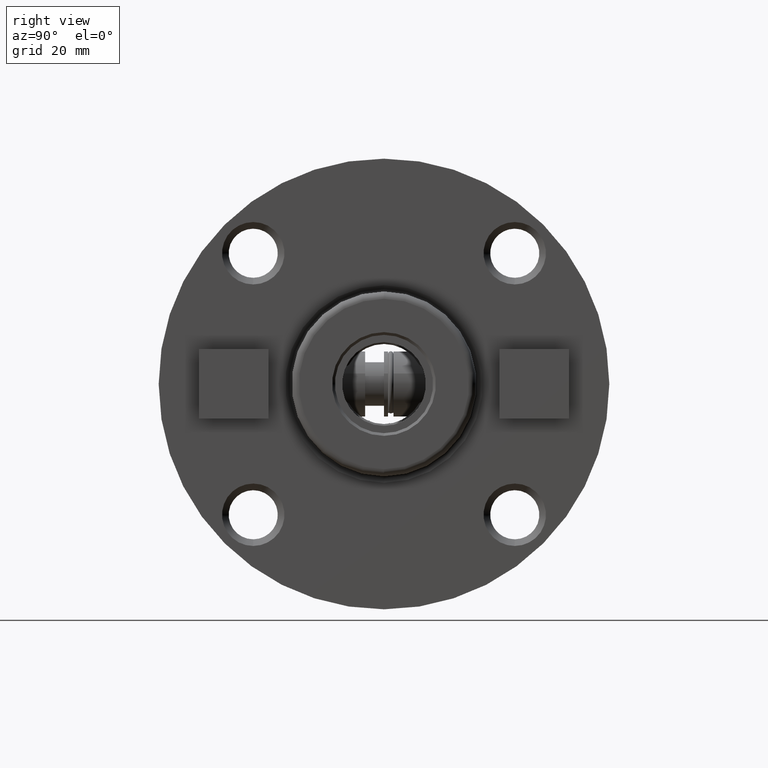
[diagram: clean part render]
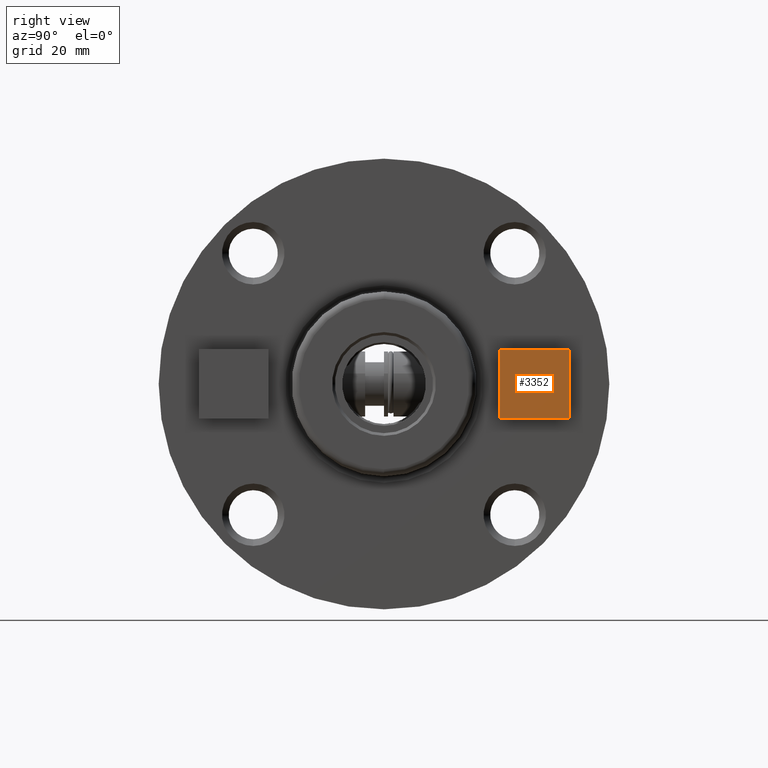
[diagram: same view with one face highlighted and labeled with its STEP entity id]
A machine part, right view. The second image highlights one B-rep face of the part: STEP entity #3352.
In plain terms, the highlighted planar face has unit normal (1, 0, 0).
Its self-contained STEP definition (entity closure, byte-faithful):
#159 = AXIS2_PLACEMENT_3D ( 'NONE', #2183, #2292, #2293 ) ;
#427 = ORIENTED_EDGE ( 'NONE', *, *, #5033, .T. ) ;
#429 = ORIENTED_EDGE ( 'NONE', *, *, #5017, .T. ) ;
#451 = ORIENTED_EDGE ( 'NONE', *, *, #5034, .T. ) ;
#2183 = CARTESIAN_POINT ( 'NONE',  ( 11.11249999999999700, -9.524999999999998600, 9.525000000000000400 ) ) ;
#2209 = PLANE ( 'NONE',  #159 ) ;
#2292 = DIRECTION ( 'NONE',  ( 1.000000000000000000, 0.0000000000000000000, 0.0000000000000000000 ) ) ;
#2293 = DIRECTION ( 'NONE',  ( 0.0000000000000000000, 0.0000000000000000000, -1.000000000000000000 ) ) ;
#2806 = ORIENTED_EDGE ( 'NONE', *, *, #5029, .T. ) ;
#3352 = ADVANCED_FACE ( 'NONE', ( #3978 ), #2209, .T. ) ;
#3720 = EDGE_LOOP ( 'NONE', ( #451, #2806, #427, #429 ) ) ;
#3978 = FACE_OUTER_BOUND ( 'NONE', #3720, .T. ) ;
#4173 = VECTOR ( 'NONE', #4719, 1000.000000000000000 ) ;
#4182 = LINE ( 'NONE', #4996, #4173 ) ;
#4199 = LINE ( 'NONE', #4692, #4200 ) ;
#4200 = VECTOR ( 'NONE', #4693, 1000.000000000000000 ) ;
#4203 = VECTOR ( 'NONE', #4722, 1000.000000000000000 ) ;
#4205 = LINE ( 'NONE', #4685, #4203 ) ;
#4207 = LINE ( 'NONE', #4738, #4208 ) ;
#4208 = VECTOR ( 'NONE', #4830, 1000.000000000000000 ) ;
#4352 = VERTEX_POINT ( 'NONE', #4981 ) ;
#4353 = VERTEX_POINT ( 'NONE', #4980 ) ;
#4354 = VERTEX_POINT ( 'NONE', #4973 ) ;
#4355 = VERTEX_POINT ( 'NONE', #4975 ) ;
#4685 = CARTESIAN_POINT ( 'NONE',  ( 11.11249999999999700, 9.524999999999998600, -9.524999999999998600 ) ) ;
#4692 = CARTESIAN_POINT ( 'NONE',  ( 11.11249999999999700, -9.524999999999998600, 9.525000000000000400 ) ) ;
#4693 = DIRECTION ( 'NONE',  ( 0.0000000000000000000, 0.0000000000000000000, -1.000000000000000000 ) ) ;
#4719 = DIRECTION ( 'NONE',  ( -0.0000000000000000000, -0.0000000000000000000, 1.000000000000000000 ) ) ;
#4722 = DIRECTION ( 'NONE',  ( -0.0000000000000000000, 1.000000000000000000, 9.106159978880878600E-017 ) ) ;
#4738 = CARTESIAN_POINT ( 'NONE',  ( 11.11249999999999700, 9.524999999999998600, 9.525000000000002100 ) ) ;
#4830 = DIRECTION ( 'NONE',  ( 0.0000000000000000000, -1.000000000000000000, -9.106159978880878600E-017 ) ) ;
#4973 = CARTESIAN_POINT ( 'NONE',  ( 11.11249999999999700, -9.524999999999998600, -9.525000000000000400 ) ) ;
#4975 = CARTESIAN_POINT ( 'NONE',  ( 11.11249999999999700, 9.524999999999998600, -9.524999999999998600 ) ) ;
#4980 = CARTESIAN_POINT ( 'NONE',  ( 11.11249999999999700, 9.524999999999998600, 9.525000000000002100 ) ) ;
#4981 = CARTESIAN_POINT ( 'NONE',  ( 11.11249999999999700, -9.524999999999998600, 9.525000000000000400 ) ) ;
#4996 = CARTESIAN_POINT ( 'NONE',  ( 11.11249999999999700, 9.524999999999998600, 9.525000000000002100 ) ) ;
#5017 = EDGE_CURVE ( 'NONE', #4355, #4353, #4182, .T. ) ;
#5029 = EDGE_CURVE ( 'NONE', #4352, #4354, #4199, .T. ) ;
#5033 = EDGE_CURVE ( 'NONE', #4354, #4355, #4205, .T. ) ;
#5034 = EDGE_CURVE ( 'NONE', #4353, #4352, #4207, .T. ) ;